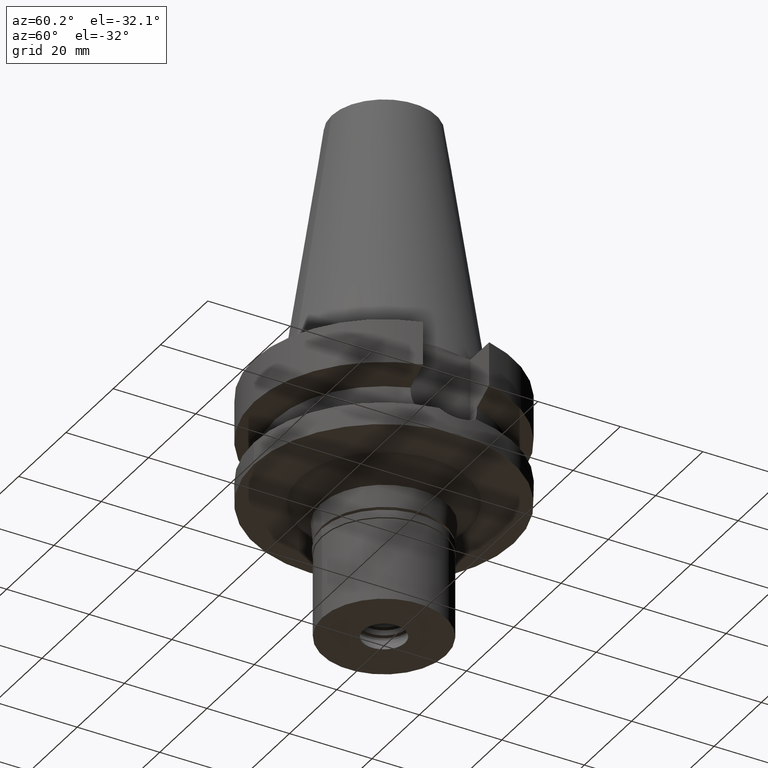
[diagram: clean part render]
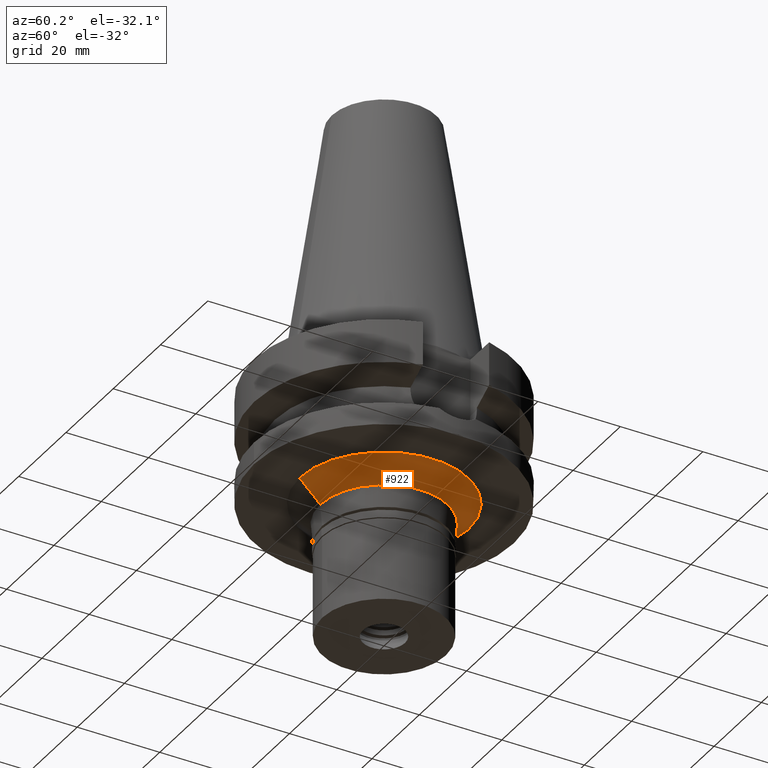
[diagram: same view with one face highlighted and labeled with its STEP entity id]
A machine part, auxiliary view. The second image highlights one B-rep face of the part: STEP entity #922.
In plain terms, the highlighted conical surface has half-angle 45 deg.
Its self-contained STEP definition (entity closure, byte-faithful):
#52 = VERTEX_POINT ( 'NONE', #1321 ) ;
#301 = AXIS2_PLACEMENT_3D ( 'NONE', #2487, #888, #339 ) ;
#339 = DIRECTION ( 'NONE',  ( 0.0000000000000000000, -1.000000000000000000, 0.0000000000000000000 ) ) ;
#389 = ORIENTED_EDGE ( 'NONE', *, *, #734, .T. ) ;
#436 = DIRECTION ( 'NONE',  ( 0.0000000000000000000, 0.0000000000000000000, 1.000000000000000000 ) ) ;
#530 = ORIENTED_EDGE ( 'NONE', *, *, #2380, .F. ) ;
#533 = DIRECTION ( 'NONE',  ( 0.0000000000000000000, 0.0000000000000000000, -1.000000000000000000 ) ) ;
#604 = VECTOR ( 'NONE', #2381, 1000.000000000000000 ) ;
#629 = VERTEX_POINT ( 'NONE', #2061 ) ;
#728 = DIRECTION ( 'NONE',  ( 0.0000000000000000000, 1.000000000000000000, 0.0000000000000000000 ) ) ;
#734 = EDGE_CURVE ( 'NONE', #52, #1719, #750, .T. ) ;
#750 = CIRCLE ( 'NONE', #301, 15.45494105034000043 ) ;
#794 = ORIENTED_EDGE ( 'NONE', *, *, #1606, .T. ) ;
#888 = DIRECTION ( 'NONE',  ( 0.0000000000000000000, 0.0000000000000000000, 1.000000000000000000 ) ) ;
#922 = ADVANCED_FACE ( 'NONE', ( #1854 ), #1942, .T. ) ;
#1003 = CIRCLE ( 'NONE', #2446, 20.45494105033000309 ) ;
#1321 = CARTESIAN_POINT ( 'NONE',  ( 0.0000000000000000000, -15.45494105032999954, -32.00000000000000000 ) ) ;
#1430 = EDGE_CURVE ( 'NONE', #629, #1990, #1003, .T. ) ;
#1575 = CARTESIAN_POINT ( 'NONE',  ( 0.0000000000000000000, 20.45494105033000309, -27.00000000000000000 ) ) ;
#1606 = EDGE_CURVE ( 'NONE', #1990, #52, #1936, .T. ) ;
#1612 = CARTESIAN_POINT ( 'NONE',  ( 0.0000000000000000000, 0.0000000000000000000, -29.50000000000000000 ) ) ;
#1661 = CARTESIAN_POINT ( 'NONE',  ( 0.0000000000000000000, -20.45494105033000309, -27.00000000000000000 ) ) ;
#1665 = CARTESIAN_POINT ( 'NONE',  ( 0.0000000000000000000, -20.45494105033000309, -27.00000000000000000 ) ) ;
#1675 = CARTESIAN_POINT ( 'NONE',  ( 0.0000000000000000000, 0.0000000000000000000, -27.00000000000000000 ) ) ;
#1719 = VERTEX_POINT ( 'NONE', #2967 ) ;
#1819 = ORIENTED_EDGE ( 'NONE', *, *, #1430, .T. ) ;
#1854 = FACE_OUTER_BOUND ( 'NONE', #2407, .T. ) ;
#1936 = LINE ( 'NONE', #1665, #604 ) ;
#1942 = CONICAL_SURFACE ( 'NONE', #2885, 17.95494105032999954, 0.7853981633972997312 ) ;
#1990 = VERTEX_POINT ( 'NONE', #1661 ) ;
#2061 = CARTESIAN_POINT ( 'NONE',  ( 0.0000000000000000000, 20.45494105033000309, -27.00000000000000000 ) ) ;
#2267 = DIRECTION ( 'NONE',  ( 0.0000000000000000000, -0.7071067811862969954, -0.7071067811867980391 ) ) ;
#2380 = EDGE_CURVE ( 'NONE', #629, #1719, #3022, .T. ) ;
#2381 = DIRECTION ( 'NONE',  ( 0.0000000000000000000, 0.7071067811862969954, -0.7071067811867980391 ) ) ;
#2407 = EDGE_LOOP ( 'NONE', ( #1819, #794, #389, #530 ) ) ;
#2446 = AXIS2_PLACEMENT_3D ( 'NONE', #1675, #533, #2641 ) ;
#2487 = CARTESIAN_POINT ( 'NONE',  ( 0.0000000000000000000, 0.0000000000000000000, -32.00000000000000000 ) ) ;
#2547 = VECTOR ( 'NONE', #2267, 1000.000000000000000 ) ;
#2641 = DIRECTION ( 'NONE',  ( 0.0000000000000000000, 1.000000000000000000, 0.0000000000000000000 ) ) ;
#2885 = AXIS2_PLACEMENT_3D ( 'NONE', #1612, #436, #728 ) ;
#2967 = CARTESIAN_POINT ( 'NONE',  ( 0.0000000000000000000, 15.45494105032999954, -32.00000000000000000 ) ) ;
#3022 = LINE ( 'NONE', #1575, #2547 ) ;